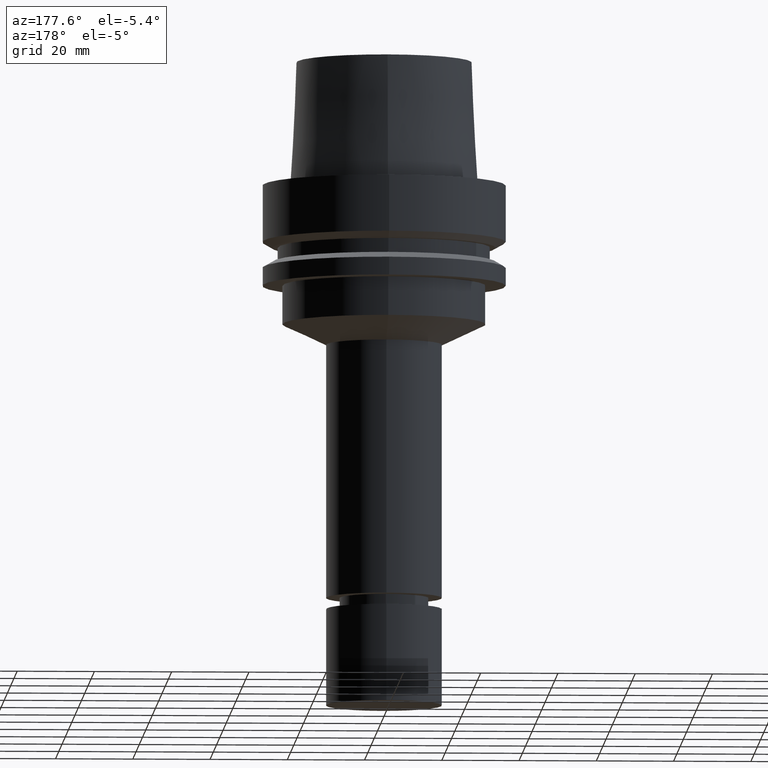
[diagram: clean part render]
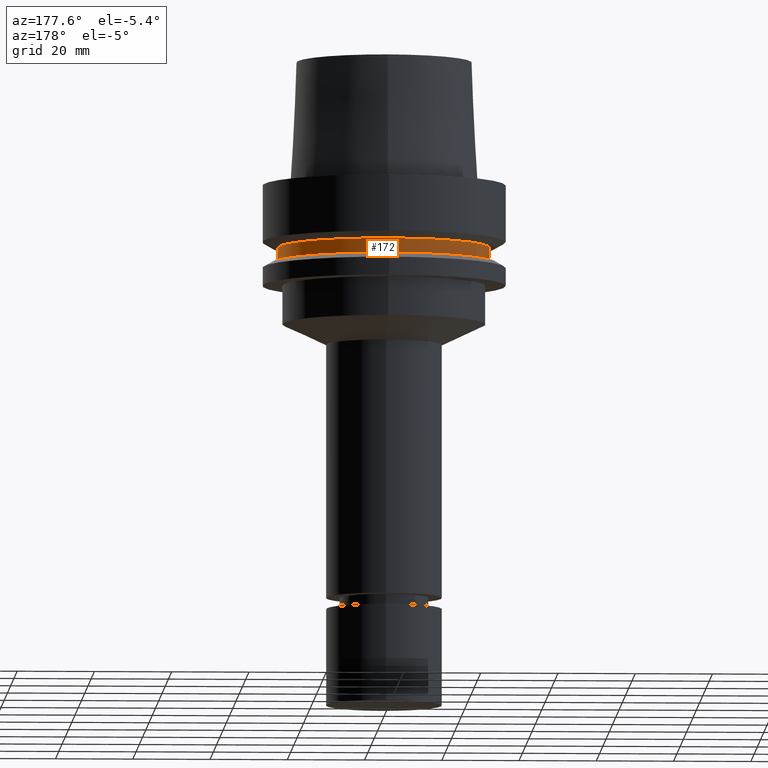
[diagram: same view with one face highlighted and labeled with its STEP entity id]
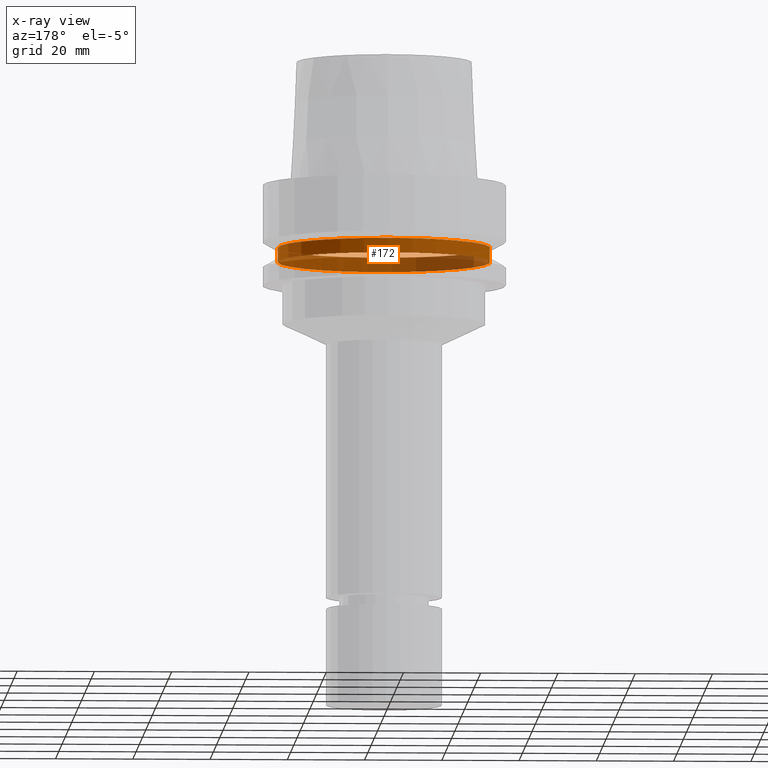
[diagram: x-ray of the same camera — body ghosted, the highlighted face saturated]
A machine part, auxiliary view. The second image highlights one B-rep face of the part: STEP entity #172.
The next image is the same camera in x-ray: the body ghosted, the highlighted face saturated — about 47% of this face is hidden behind the body in this view.
In plain terms, the highlighted cylindrical surface (bore or boss wall) has radius 27.5 mm, axis along (-0, -0, 1).
Its self-contained STEP definition (entity closure, byte-faithful):
#94=EDGE_CURVE('Unnamed[1]',#239,#239,#240,.T.);
#154=EDGE_CURVE('Unnamed[1]',#327,#327,#328,.T.);
#172=ADVANCED_FACE('Unnamed[1]',(#355,#356),#357,.T.);
#239=VERTEX_POINT('',#437);
#240=CIRCLE('',#438,27.4999999999989);
#327=VERTEX_POINT('',#547);
#328=CIRCLE('',#548,27.5);
#355=FACE_BOUND('',#582,.T.);
#356=FACE_BOUND('',#583,.T.);
#357=CYLINDRICAL_SURFACE('',#584,27.4999999999994);
#437=CARTESIAN_POINT('',(1.21699275665276E-015,27.4999999999989,-19.8750000000013));
#438=AXIS2_PLACEMENT_3D('',#657,#658,#659);
#547=CARTESIAN_POINT('',(9.87371481812537E-016,27.5,-16.1249999999997));
#548=AXIS2_PLACEMENT_3D('',#751,#752,#753);
#582=EDGE_LOOP('',(#782));
#583=EDGE_LOOP('',(#783));
#584=AXIS2_PLACEMENT_3D('',#784,#785,#786);
#657=CARTESIAN_POINT('',(1.21699275665276E-015,2.43398551330552E-015,-19.8750000000013));
#658=DIRECTION('',(-6.12323399573677E-017,-1.22464679914735E-016,1.0));
#659=DIRECTION('',(-1.23259516440783E-032,1.0,1.22464679914735E-016));
#751=CARTESIAN_POINT('',(9.87371481812538E-016,1.97474296362508E-015,-16.1249999999997));
#752=DIRECTION('',(-6.12323399573677E-017,-1.22464679914735E-016,1.0));
#753=DIRECTION('',(-1.23259516440783E-032,1.0,1.22464679914735E-016));
#782=ORIENTED_EDGE('',*,*,#154,.F.);
#783=ORIENTED_EDGE('',*,*,#94,.T.);
#784=CARTESIAN_POINT('',(1.10218211923265E-015,2.2043642384653E-015,-18.0000000000005));
#785=DIRECTION('',(-6.12323399573677E-017,-1.22464679914735E-016,1.0));
#786=DIRECTION('',(-1.23259516440783E-032,1.0,1.22464679914735E-016));